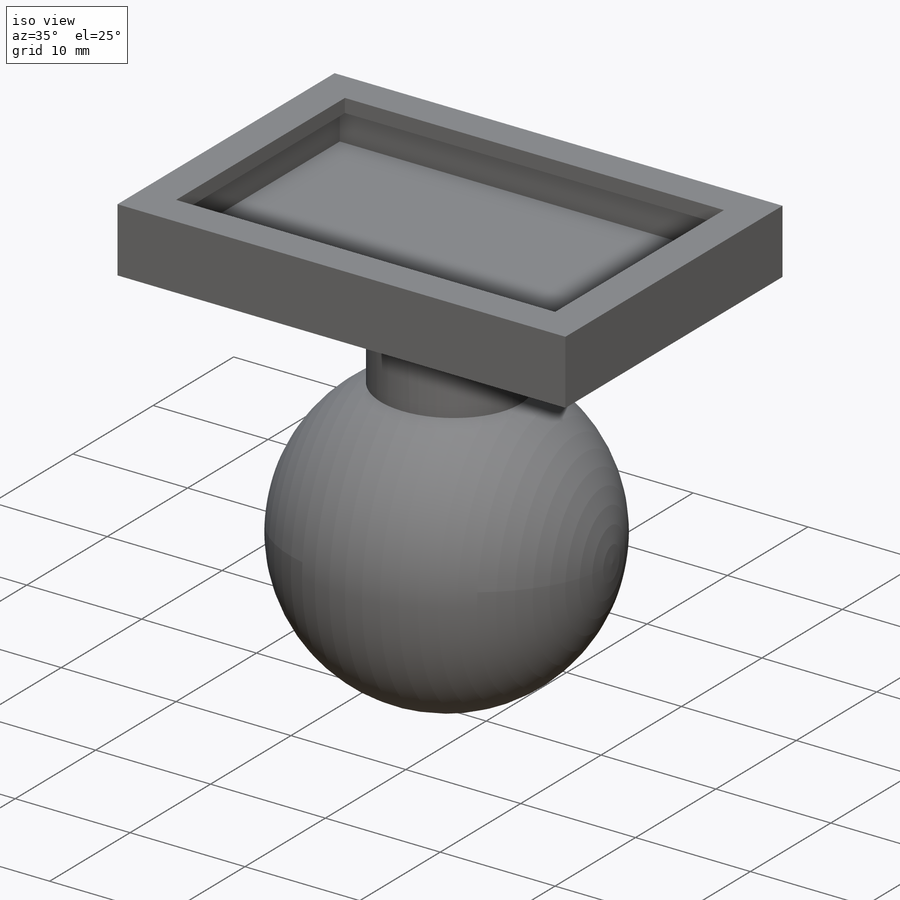
[diagram: iso view]
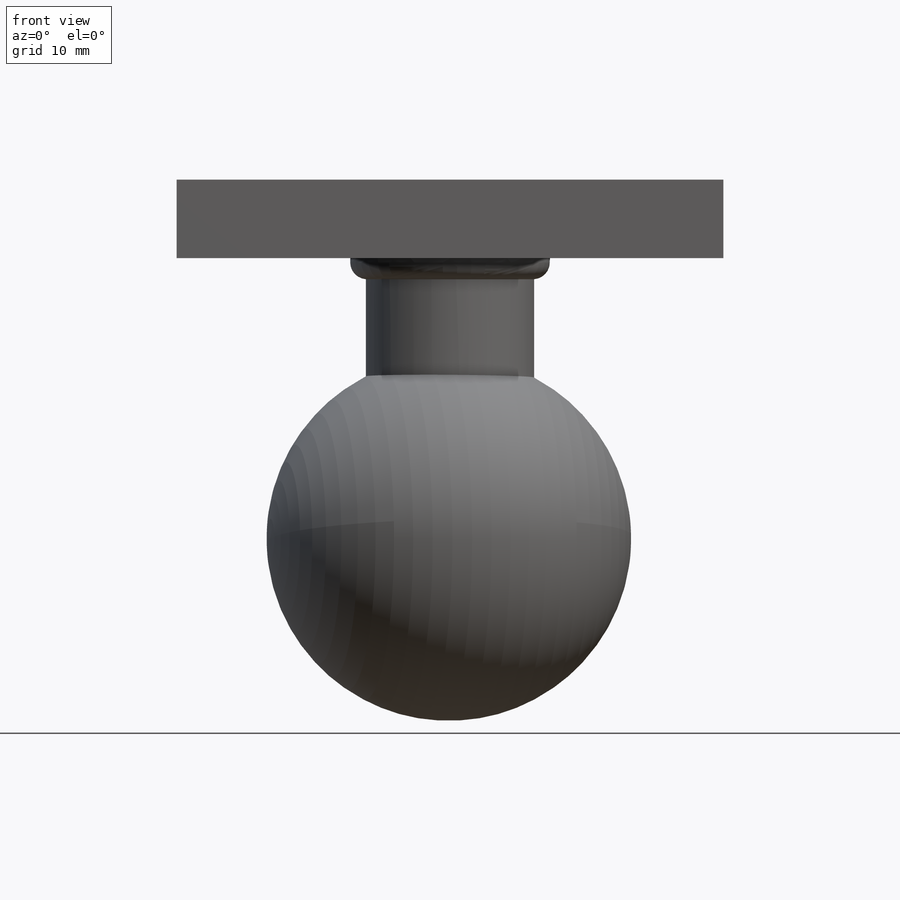
[diagram: front view]
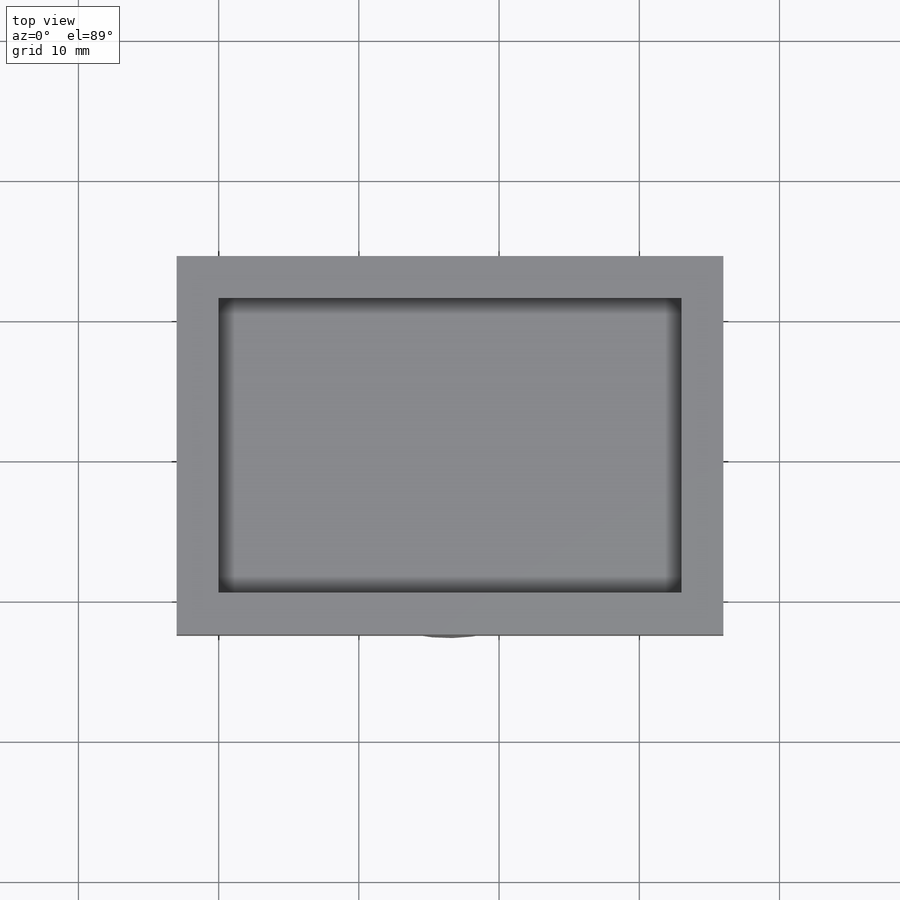
[diagram: top view]
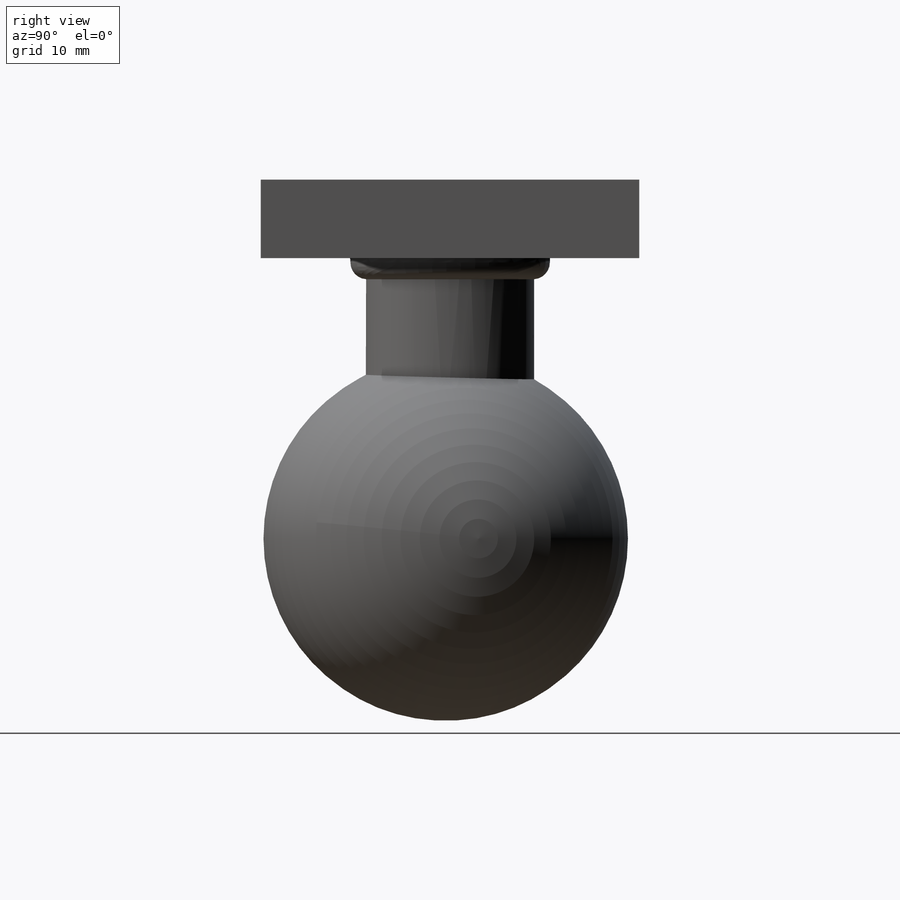
[diagram: right view]
SOLIDWORKS PART (.sldprt)
format: sldprt  version: not decoded by parser v0  size: 278,528 bytes
history: native  units: mm
features: sketch x6, extrude x5, plane x3, material x1, fillet x1, revolve x1 (+10 scaffold rows collapsed)
feature tree (27):
  scaffold x10  (default folders/planes/origin — collapsed)
  material  "Matériau <non spécifié>"
  plane  "Plan de face"
  plane  "Plan de dessus"
  plane  "Plan de droite"
  sketch  "Esquisse1"  dims[c1.D1=21.0mm c1.D2=33.0mm c2.D1=~0.993819mm c2.D2=~10.216254mm c3.D1=28.0mm c3.D2=~35.295291mm c4.D1=27.0mm c4.D2=39.0mm c5.D1=33.0mm c5.D2=39.0mm c5.D3=3.0mm c5.D4=3.0mm c5.D5=21.0mm c5.D6=27.0mm c5.D7=3.0mm]
  extrude  "Boss.-Extru.1"  Depth=1.2mm
  sketch  "Esquisse2"  dims[c1.D1=27.0mm c1.D2=39.0mm c2.D1=~23.644965mm c2.D2=~35.894766mm c3.D1=1.5mm c3.D2=1.5mm c3.D3=1.5mm c3.D4=1.5mm]
  extrude  "Boss.-Extru.3"  Depth=3.2mm
  sketch  "Esquisse3"  dims[c1.D1=~0.944971mm c1.D2=~0.779374mm c2.D1=27.0mm c2.D2=39.0mm]
  extrude  "Boss.-Extru.4"  Depth=1.2mm
  sketch  "Esquisse5"  dims[D1=13.5mm D2=13.5mm D3=19.5mm D4=19.5mm]
  extrude  "Boss.-Extru.6"  Depth=20mm
  sketch  "Esquisse6"  dims[D1=19.5mm D2=13.5mm]
  extrude  "Boss.-Extru.7"  Depth=1.5mm
  fillet  "Congé1"  Radius=1.2mm
  sketch  "Esquisse7"  dims[D1=~16.360199mm]
  revolve  "Révolution2"  Angle=360deg
decode coverage: 13 of 13 modeling features carry decoded parameters
note: ~ marks probable driven/reference dimensions
note: suppression state not decoded; provenance and decode notes live in map.json
